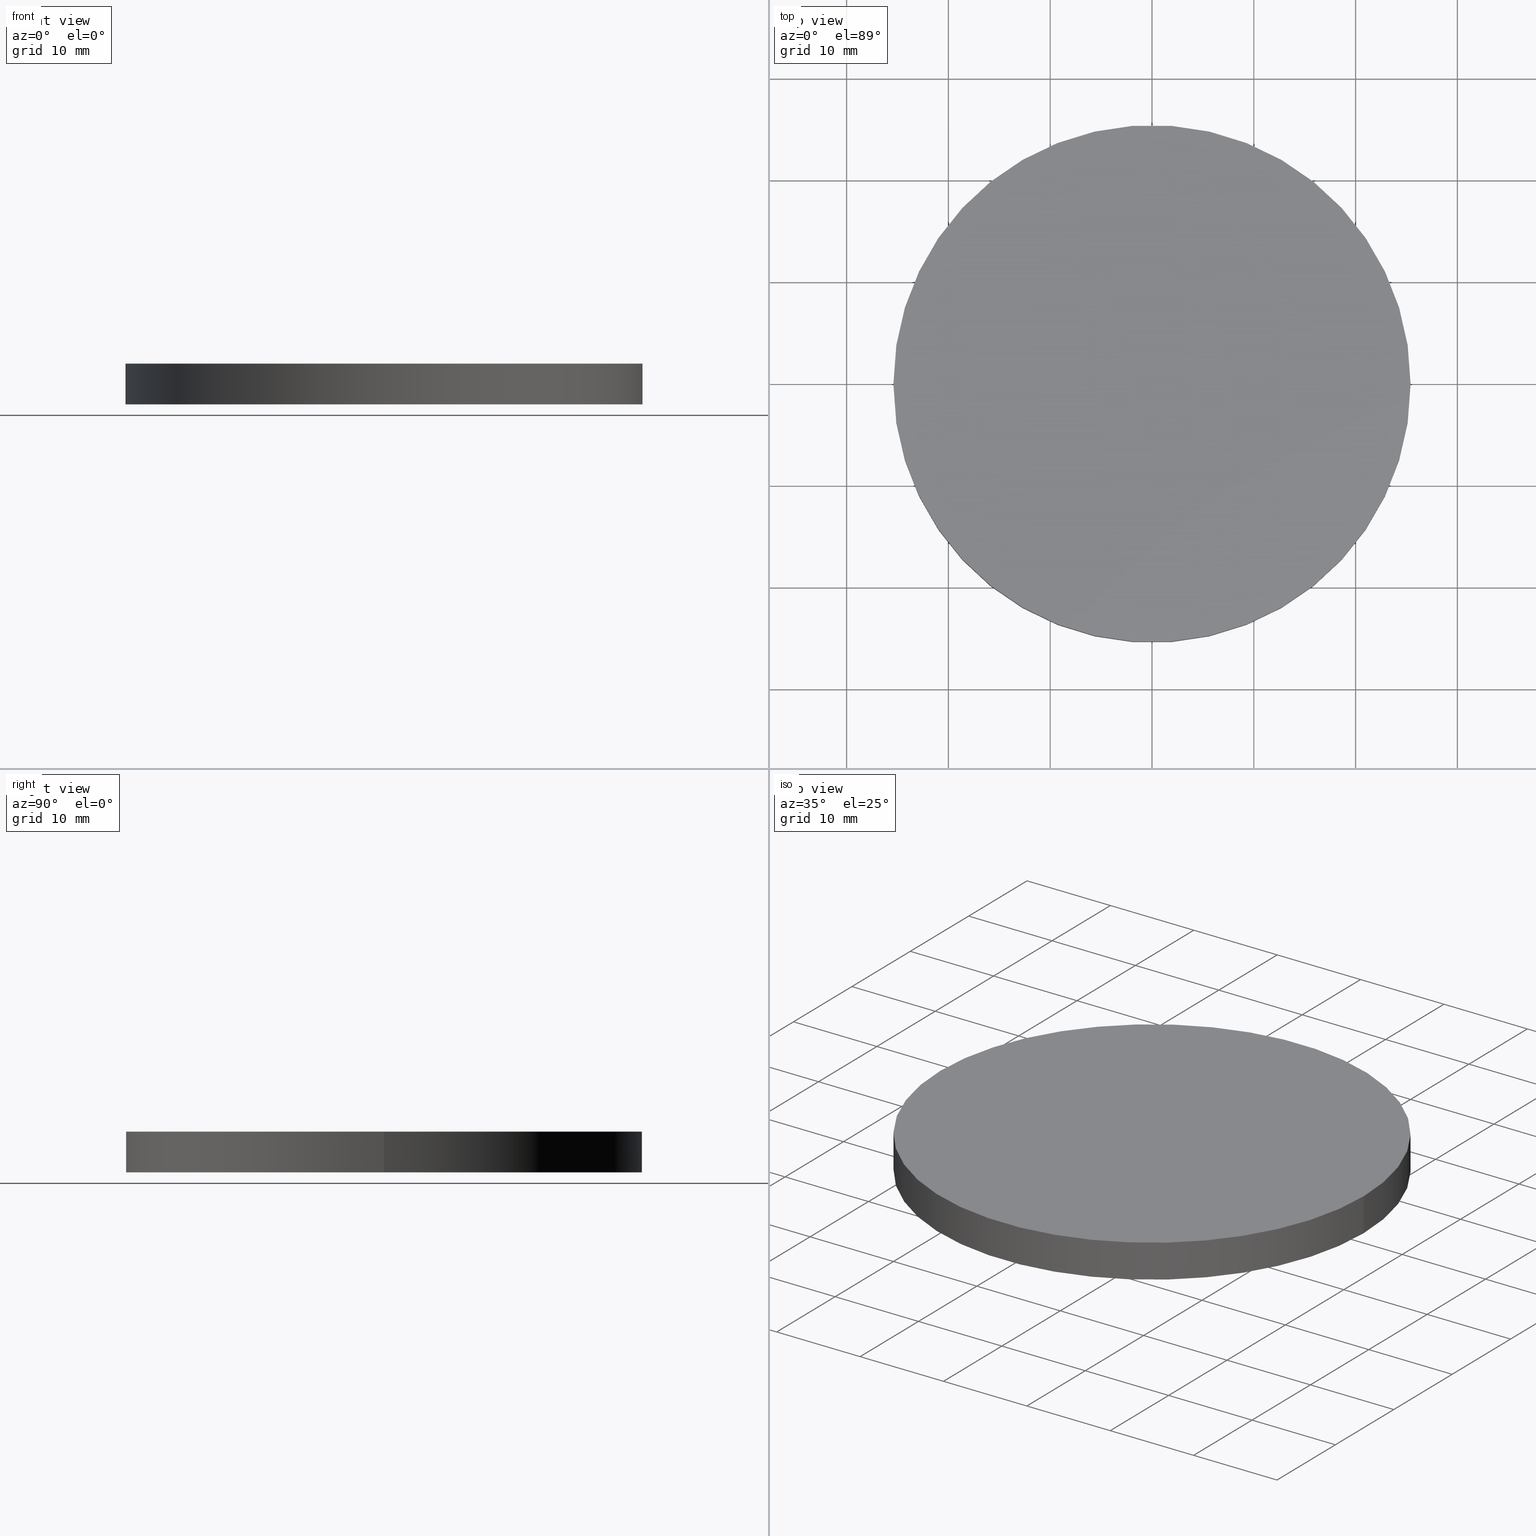
[diagram: canonical four-view strip — front | top / right | iso, engineering-drawing reading convention]
A machine part, canonical four-view strip (front | top / right | iso — engineering-drawing reading convention). The complete STEP part file that produces these views, byte-faithful:
ISO-10303-21;
HEADER;
FILE_DESCRIPTION (( 'STEP AP214' ),
    '1' );
FILE_NAME ('180010.STEP',
    '2019-07-09T06:01:39',
    ( 'user' ),
    ( '΢���й�' ),
    'SwSTEP 2.0',
    'SolidWorks 2016',
    '' );
FILE_SCHEMA (( 'AUTOMOTIVE_DESIGN' ));
ENDSEC;

DATA;
#1 = CIRCLE ( 'NONE', #42, 25.39999999999999900 ) ;
#2 = STYLED_ITEM ( 'NONE', ( #57 ), #85 ) ;
#3 = ORIENTED_EDGE ( 'NONE', *, *, #104, .F. ) ;
#4 = DIRECTION ( 'NONE',  ( 0.0000000000000000000, 0.0000000000000000000, 1.000000000000000000 ) ) ;
#5 = UNCERTAINTY_MEASURE_WITH_UNIT (LENGTH_MEASURE( 1.000000000000000100E-005 ), #98, 'distance_accuracy_value', 'NONE');
#6 = CARTESIAN_POINT ( 'NONE',  ( 0.0000000000000000000, 0.0000000000000000000, 4.000000000000000000 ) ) ;
#7 = CARTESIAN_POINT ( 'NONE',  ( 0.0000000000000000000, 0.0000000000000000000, 4.000000000000000000 ) ) ;
#8 = ADVANCED_FACE ( 'NONE', ( #73 ), #125, .T. ) ;
#9 = ORIENTED_EDGE ( 'NONE', *, *, #27, .T. ) ;
#10 =( NAMED_UNIT ( * ) SI_UNIT ( $, .STERADIAN. ) SOLID_ANGLE_UNIT ( ) );
#11 = CARTESIAN_POINT ( 'NONE',  ( 0.0000000000000000000, 0.0000000000000000000, 0.0000000000000000000 ) ) ;
#12 = CIRCLE ( 'NONE', #14, 25.39999999999999900 ) ;
#13 = DIRECTION ( 'NONE',  ( 1.000000000000000000, 0.0000000000000000000, -0.0000000000000000000 ) ) ;
#14 = AXIS2_PLACEMENT_3D ( 'NONE', #128, #25, #127 ) ;
#15 = CARTESIAN_POINT ( 'NONE',  ( 0.0000000000000000000, 0.0000000000000000000, 0.0000000000000000000 ) ) ;
#16 = LINE ( 'NONE', #90, #84 ) ;
#17 = ORIENTED_EDGE ( 'NONE', *, *, #111, .T. ) ;
#18 = DIRECTION ( 'NONE',  ( 0.0000000000000000000, 0.0000000000000000000, 1.000000000000000000 ) ) ;
#19 = CARTESIAN_POINT ( 'NONE',  ( -25.39999999999999900, 0.0000000000000000000, 4.000000000000000000 ) ) ;
#20 = UNCERTAINTY_MEASURE_WITH_UNIT (LENGTH_MEASURE( 1.000000000000000100E-005 ), #118, 'distance_accuracy_value', 'NONE');
#21 = FACE_OUTER_BOUND ( 'NONE', #119, .T. ) ;
#22 = DIRECTION ( 'NONE',  ( 1.000000000000000000, 0.0000000000000000000, 0.0000000000000000000 ) ) ;
#23 = DIRECTION ( 'NONE',  ( 0.0000000000000000000, 0.0000000000000000000, 1.000000000000000000 ) ) ;
#24 = DIRECTION ( 'NONE',  ( 1.000000000000000000, 0.0000000000000000000, 0.0000000000000000000 ) ) ;
#25 = DIRECTION ( 'NONE',  ( 0.0000000000000000000, 0.0000000000000000000, 1.000000000000000000 ) ) ;
#26 = VECTOR ( 'NONE', #54, 1000.000000000000000 ) ;
#27 = EDGE_CURVE ( 'NONE', #102, #50, #12, .T. ) ;
#28 = AXIS2_PLACEMENT_3D ( 'NONE', #15, #80, #52 ) ;
#29 = AXIS2_PLACEMENT_3D ( 'NONE', #41, #103, #13 ) ;
#30 = CIRCLE ( 'NONE', #36, 25.39999999999999900 ) ;
#31 = FACE_OUTER_BOUND ( 'NONE', #113, .T. ) ;
#32 = ADVANCED_FACE ( 'NONE', ( #21 ), #121, .F. ) ;
#33 = FILL_AREA_STYLE ('',( #92 ) ) ;
#34 = SHAPE_DEFINITION_REPRESENTATION ( #131, #76 ) ;
#35 =( GEOMETRIC_REPRESENTATION_CONTEXT ( 3 ) GLOBAL_UNCERTAINTY_ASSIGNED_CONTEXT ( ( #5 ) ) GLOBAL_UNIT_ASSIGNED_CONTEXT ( ( #98, #78, #81 ) ) REPRESENTATION_CONTEXT ( 'NONE', 'WORKASPACE' ) );
#36 = AXIS2_PLACEMENT_3D ( 'NONE', #115, #4, #22 ) ;
#37 = COLOUR_RGB ( '',1.000000000000000000, 1.000000000000000000, 1.000000000000000000 ) ;
#38 = ORIENTED_EDGE ( 'NONE', *, *, #97, .T. ) ;
#39 = EDGE_LOOP ( 'NONE', ( #58, #79, #38, #9 ) ) ;
#40 = CARTESIAN_POINT ( 'NONE',  ( 0.0000000000000000000, 0.0000000000000000000, 0.0000000000000000000 ) ) ;
#41 = CARTESIAN_POINT ( 'NONE',  ( 0.0000000000000000000, 0.0000000000000000000, 4.000000000000000000 ) ) ;
#42 = AXIS2_PLACEMENT_3D ( 'NONE', #7, #18, #24 ) ;
#43 = EDGE_LOOP ( 'NONE', ( #117, #110, #89, #64 ) ) ;
#44 = PRODUCT_DEFINITION_CONTEXT ( 'detailed design', #83, 'design' ) ;
#45 = CIRCLE ( 'NONE', #28, 25.39999999999999900 ) ;
#46 = CARTESIAN_POINT ( 'NONE',  ( 25.39999999999999900, 3.110602869834276900E-015, 4.000000000000000000 ) ) ;
#47 =( NAMED_UNIT ( * ) PLANE_ANGLE_UNIT ( ) SI_UNIT ( $, .RADIAN. ) );
#48 = DIRECTION ( 'NONE',  ( 0.0000000000000000000, 0.0000000000000000000, 1.000000000000000000 ) ) ;
#49 =( GEOMETRIC_REPRESENTATION_CONTEXT ( 3 ) GLOBAL_UNCERTAINTY_ASSIGNED_CONTEXT ( ( #94 ) ) GLOBAL_UNIT_ASSIGNED_CONTEXT ( ( #116, #47, #134 ) ) REPRESENTATION_CONTEXT ( 'NONE', 'WORKASPACE' ) );
#50 = VERTEX_POINT ( 'NONE', #106 ) ;
#51 = DIRECTION ( 'NONE',  ( -0.0000000000000000000, -0.0000000000000000000, -1.000000000000000000 ) ) ;
#52 = DIRECTION ( 'NONE',  ( 1.000000000000000000, 0.0000000000000000000, 0.0000000000000000000 ) ) ;
#53 = SURFACE_STYLE_FILL_AREA ( #136 ) ;
#54 = DIRECTION ( 'NONE',  ( -0.0000000000000000000, -0.0000000000000000000, -1.000000000000000000 ) ) ;
#55 = APPLICATION_CONTEXT ( 'automotive_design' ) ;
#56 = STYLED_ITEM ( 'NONE', ( #77 ), #76 ) ;
#57 = PRESENTATION_STYLE_ASSIGNMENT (( #130 ) ) ;
#58 = ORIENTED_EDGE ( 'NONE', *, *, #87, .F. ) ;
#59 = ADVANCED_FACE ( 'NONE', ( #31 ), #71, .T. ) ;
#60 = DIRECTION ( 'NONE',  ( -0.0000000000000000000, -0.0000000000000000000, -1.000000000000000000 ) ) ;
#61 = AXIS2_PLACEMENT_3D ( 'NONE', #68, #60, #99 ) ;
#62 = COLOUR_RGB ( '',1.000000000000000000, 1.000000000000000000, 1.000000000000000000 ) ;
#63 = CARTESIAN_POINT ( 'NONE',  ( -25.39999999999999900, 0.0000000000000000000, 0.0000000000000000000 ) ) ;
#64 = ORIENTED_EDGE ( 'NONE', *, *, #97, .F. ) ;
#65 = ORIENTED_EDGE ( 'NONE', *, *, #27, .F. ) ;
#66 = VERTEX_POINT ( 'NONE', #135 ) ;
#67 = AXIS2_PLACEMENT_3D ( 'NONE', #11, #48, #105 ) ;
#68 = CARTESIAN_POINT ( 'NONE',  ( 0.0000000000000000000, 0.0000000000000000000, 4.000000000000000000 ) ) ;
#69 = LINE ( 'NONE', #19, #26 ) ;
#70 = PRODUCT_CONTEXT ( 'NONE', #55, 'mechanical' ) ;
#71 = PLANE ( 'NONE',  #29 ) ;
#72 = AXIS2_PLACEMENT_3D ( 'NONE', #6, #51, #140 ) ;
#73 = FACE_OUTER_BOUND ( 'NONE', #43, .T. ) ;
#74 = PRESENTATION_LAYER_ASSIGNMENT (  '', '', ( #56 ) ) ;
#75 = SURFACE_SIDE_STYLE ('',( #100 ) ) ;
#76 = ADVANCED_BREP_SHAPE_REPRESENTATION ( '180010', ( #85, #112 ), #49 ) ;
#77 = PRESENTATION_STYLE_ASSIGNMENT (( #86 ) ) ;
#78 =( NAMED_UNIT ( * ) PLANE_ANGLE_UNIT ( ) SI_UNIT ( $, .RADIAN. ) );
#79 = ORIENTED_EDGE ( 'NONE', *, *, #124, .F. ) ;
#80 = DIRECTION ( 'NONE',  ( 0.0000000000000000000, 0.0000000000000000000, 1.000000000000000000 ) ) ;
#81 =( NAMED_UNIT ( * ) SI_UNIT ( $, .STERADIAN. ) SOLID_ANGLE_UNIT ( ) );
#82 = MECHANICAL_DESIGN_GEOMETRIC_PRESENTATION_REPRESENTATION (  '', ( #56 ), #88 ) ;
#83 = APPLICATION_CONTEXT ( 'automotive_design' ) ;
#84 = VECTOR ( 'NONE', #107, 1000.000000000000000 ) ;
#85 = MANIFOLD_SOLID_BREP ( '͹̨-����1', #132 ) ;
#86 = SURFACE_STYLE_USAGE ( .BOTH. , #139 ) ;
#87 = EDGE_CURVE ( 'NONE', #109, #50, #16, .T. ) ;
#88 =( GEOMETRIC_REPRESENTATION_CONTEXT ( 3 ) GLOBAL_UNCERTAINTY_ASSIGNED_CONTEXT ( ( #20 ) ) GLOBAL_UNIT_ASSIGNED_CONTEXT ( ( #118, #108, #10 ) ) REPRESENTATION_CONTEXT ( 'NONE', 'WORKASPACE' ) );
#89 = ORIENTED_EDGE ( 'NONE', *, *, #104, .T. ) ;
#90 = CARTESIAN_POINT ( 'NONE',  ( 25.39999999999999900, 3.110602869834276900E-015, 4.000000000000000000 ) ) ;
#91 = PRESENTATION_LAYER_ASSIGNMENT (  '', '', ( #2 ) ) ;
#92 = FILL_AREA_STYLE_COLOUR ( '', #62 ) ;
#93 = FACE_OUTER_BOUND ( 'NONE', #39, .T. ) ;
#94 = UNCERTAINTY_MEASURE_WITH_UNIT (LENGTH_MEASURE( 1.000000000000000100E-005 ), #116, 'distance_accuracy_value', 'NONE');
#95 = APPLICATION_PROTOCOL_DEFINITION ( 'draft international standard', 'automotive_design', 1998, #55 ) ;
#96 = DIRECTION ( 'NONE',  ( 1.000000000000000000, 0.0000000000000000000, 0.0000000000000000000 ) ) ;
#97 = EDGE_CURVE ( 'NONE', #66, #102, #69, .T. ) ;
#98 =( LENGTH_UNIT ( ) NAMED_UNIT ( * ) SI_UNIT ( .MILLI., .METRE. ) );
#99 = DIRECTION ( 'NONE',  ( -1.000000000000000000, 0.0000000000000000000, 0.0000000000000000000 ) ) ;
#100 = SURFACE_STYLE_FILL_AREA ( #33 ) ;
#101 = ORIENTED_EDGE ( 'NONE', *, *, #124, .T. ) ;
#102 = VERTEX_POINT ( 'NONE', #63 ) ;
#103 = DIRECTION ( 'NONE',  ( 0.0000000000000000000, 0.0000000000000000000, 1.000000000000000000 ) ) ;
#104 = EDGE_CURVE ( 'NONE', #50, #102, #45, .T. ) ;
#105 = DIRECTION ( 'NONE',  ( 1.000000000000000000, 0.0000000000000000000, -0.0000000000000000000 ) ) ;
#106 = CARTESIAN_POINT ( 'NONE',  ( 25.39999999999999900, 3.110602869834276900E-015, 0.0000000000000000000 ) ) ;
#107 = DIRECTION ( 'NONE',  ( -0.0000000000000000000, -0.0000000000000000000, -1.000000000000000000 ) ) ;
#108 =( NAMED_UNIT ( * ) PLANE_ANGLE_UNIT ( ) SI_UNIT ( $, .RADIAN. ) );
#109 = VERTEX_POINT ( 'NONE', #46 ) ;
#110 = ORIENTED_EDGE ( 'NONE', *, *, #87, .T. ) ;
#111 = EDGE_CURVE ( 'NONE', #109, #66, #30, .T. ) ;
#112 = AXIS2_PLACEMENT_3D ( 'NONE', #40, #23, #96 ) ;
#113 = EDGE_LOOP ( 'NONE', ( #101, #17 ) ) ;
#114 = PRODUCT_RELATED_PRODUCT_CATEGORY ( 'part', '', ( #129 ) ) ;
#115 = CARTESIAN_POINT ( 'NONE',  ( 0.0000000000000000000, 0.0000000000000000000, 4.000000000000000000 ) ) ;
#116 =( LENGTH_UNIT ( ) NAMED_UNIT ( * ) SI_UNIT ( .MILLI., .METRE. ) );
#117 = ORIENTED_EDGE ( 'NONE', *, *, #111, .F. ) ;
#118 =( LENGTH_UNIT ( ) NAMED_UNIT ( * ) SI_UNIT ( .MILLI., .METRE. ) );
#119 = EDGE_LOOP ( 'NONE', ( #65, #3 ) ) ;
#120 = PRODUCT_DEFINITION ( 'δ֪', '', #126, #44 ) ;
#121 = PLANE ( 'NONE',  #67 ) ;
#122 = CYLINDRICAL_SURFACE ( 'NONE', #61, 25.39999999999999900 ) ;
#123 = MECHANICAL_DESIGN_GEOMETRIC_PRESENTATION_REPRESENTATION (  '', ( #2 ), #35 ) ;
#124 = EDGE_CURVE ( 'NONE', #66, #109, #1, .T. ) ;
#125 = CYLINDRICAL_SURFACE ( 'NONE', #72, 25.39999999999999900 ) ;
#126 = PRODUCT_DEFINITION_FORMATION_WITH_SPECIFIED_SOURCE ( '�κ�', '', #129, .NOT_KNOWN. ) ;
#127 = DIRECTION ( 'NONE',  ( 1.000000000000000000, 0.0000000000000000000, 0.0000000000000000000 ) ) ;
#128 = CARTESIAN_POINT ( 'NONE',  ( 0.0000000000000000000, 0.0000000000000000000, 0.0000000000000000000 ) ) ;
#129 = PRODUCT ( '180010', '180010', '', ( #70 ) ) ;
#130 = SURFACE_STYLE_USAGE ( .BOTH. , #75 ) ;
#131 = PRODUCT_DEFINITION_SHAPE ( 'NONE', 'NONE',  #120 ) ;
#132 = CLOSED_SHELL ( 'NONE', ( #8, #137, #59, #32 ) ) ;
#133 = FILL_AREA_STYLE_COLOUR ( '', #37 ) ;
#134 =( NAMED_UNIT ( * ) SI_UNIT ( $, .STERADIAN. ) SOLID_ANGLE_UNIT ( ) );
#135 = CARTESIAN_POINT ( 'NONE',  ( -25.39999999999999900, 0.0000000000000000000, 4.000000000000000000 ) ) ;
#136 = FILL_AREA_STYLE ('',( #133 ) ) ;
#137 = ADVANCED_FACE ( 'NONE', ( #93 ), #122, .T. ) ;
#138 = APPLICATION_PROTOCOL_DEFINITION ( 'draft international standard', 'automotive_design', 1998, #83 ) ;
#139 = SURFACE_SIDE_STYLE ('',( #53 ) ) ;
#140 = DIRECTION ( 'NONE',  ( -1.000000000000000000, 0.0000000000000000000, 0.0000000000000000000 ) ) ;
ENDSEC;
END-ISO-10303-21;
